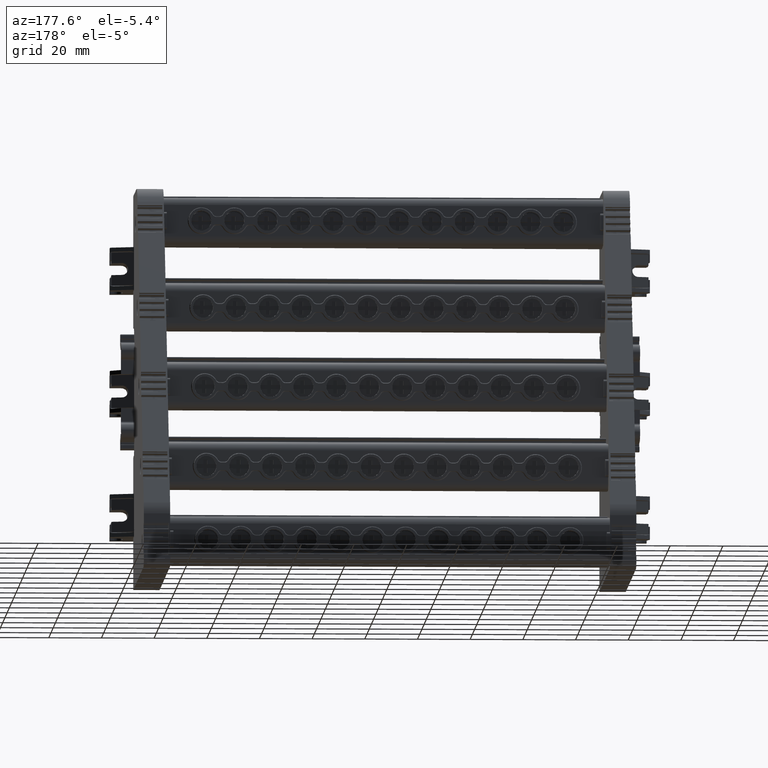
[diagram: clean part render]
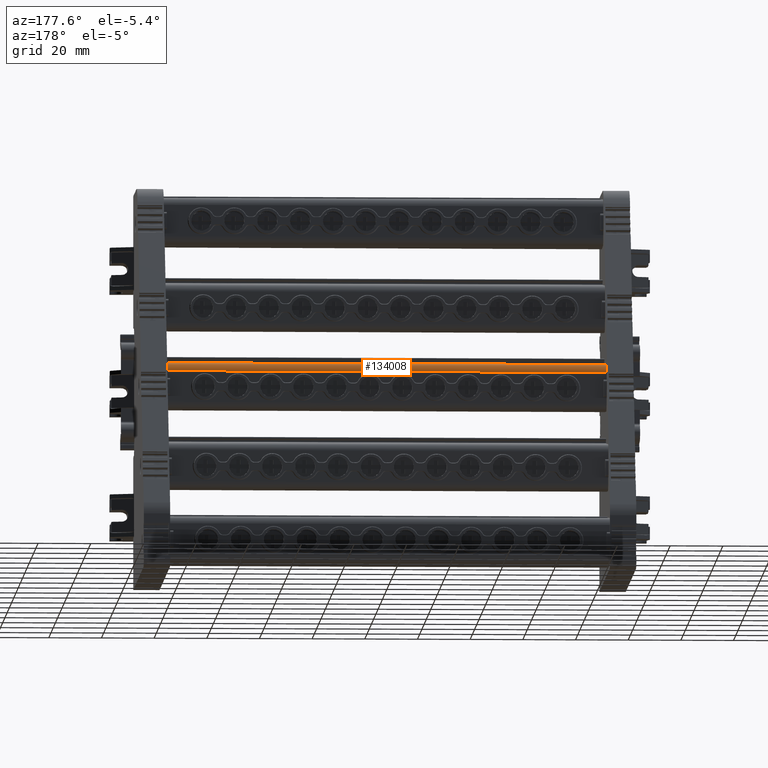
[diagram: same view with one face highlighted and labeled with its STEP entity id]
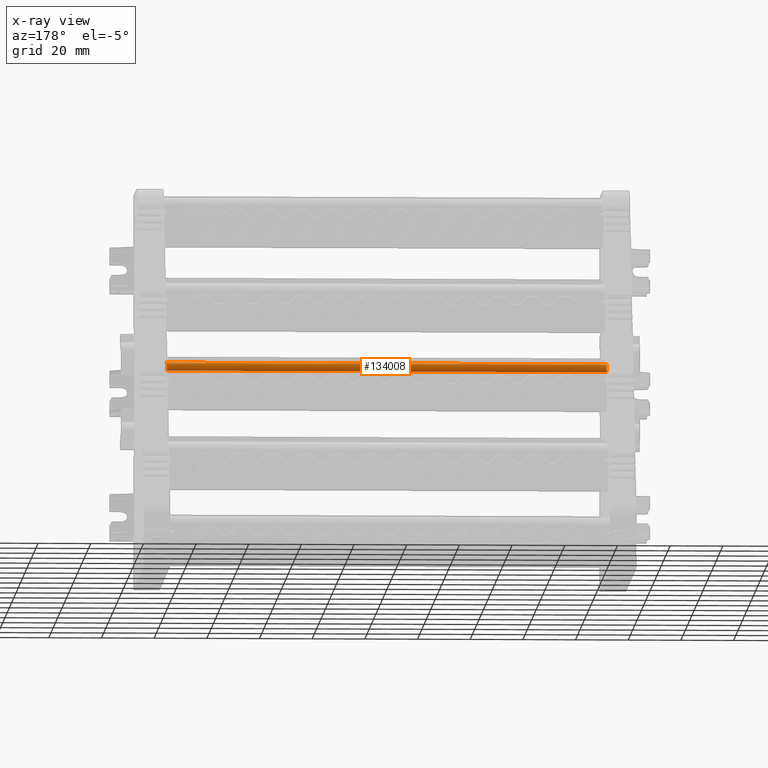
[diagram: x-ray of the same camera — body ghosted, the highlighted face saturated]
A machine part, auxiliary view. The second image highlights one B-rep face of the part: STEP entity #134008.
The next image is the same camera in x-ray: the body ghosted, the highlighted face saturated — about 0% of this face is hidden behind the body in this view.
In plain terms, the highlighted cylindrical surface (edge-blend (fillet) strip) has radius 3 mm, axis along (-1, 0, 0).
Its self-contained STEP definition (entity closure, byte-faithful):
#8115 = B_SPLINE_CURVE_WITH_KNOTS ( 'NONE', 3,
 ( #88661, #88673, #88676, #88685 ),
 .UNSPECIFIED., .F., .F.,
 ( 4, 4 ),
 ( 0.0000000000000000000, 1.000000000000000000 ),
 .UNSPECIFIED. ) ;
#8233 = B_SPLINE_CURVE_WITH_KNOTS ( 'NONE', 3,
 ( #106779, #106776, #106793, #106795, #106822, #106826, #106796, #106797, #106828, #106804 ),
 .UNSPECIFIED., .F., .F.,
 ( 4, 2, 2, 2, 4 ),
 ( 0.0000000000000000000, 0.2500000000000000000, 0.5000000000000000000, 0.7500000000000000000, 1.000000000000000000 ),
 .UNSPECIFIED. ) ;
#26209 = EDGE_CURVE ( 'NONE', #160243, #155518, #8115, .T. ) ;
#26307 = EDGE_CURVE ( 'NONE', #160142, #155612, #98813, .T. ) ;
#26438 = EDGE_CURVE ( 'NONE', #155518, #155612, #8233, .T. ) ;
#57641 = B_SPLINE_CURVE_WITH_KNOTS ( 'NONE', 3,
 ( #150737, #150773, #150693, #150645, #150770, #150749, #150762, #150601, #150776, #150696 ),
 .UNSPECIFIED., .F., .F.,
 ( 4, 2, 2, 2, 4 ),
 ( 0.0000000000000000000, 0.2500000000000000000, 0.5000000000000000000, 0.7500000000000000000, 1.000000000000000000 ),
 .UNSPECIFIED. ) ;
#84550 = FACE_OUTER_BOUND ( 'NONE', #212178, .T. ) ;
#84552 = CYLINDRICAL_SURFACE ( 'NONE', #111547, 2.999999999999975100 ) ;
#84557 = DIRECTION ( 'NONE',  ( -1.040834085586092900E-014, -1.000000000000000000, 0.0000000000000000000 ) ) ;
#84584 = CARTESIAN_POINT ( 'NONE',  ( -12.17442802713044100, 152.8607743740060100, -344.2644035297629400 ) ) ;
#84597 = DIRECTION ( 'NONE',  ( -1.000000000000000000, 1.014411379984426500E-014, 3.372056924162001300E-015 ) ) ;
#88661 = CARTESIAN_POINT ( 'NONE',  ( 44.19725230226248400, 155.8493584682806800, -344.5258707580061900 ) ) ;
#88673 = CARTESIAN_POINT ( 'NONE',  ( -11.46830780753505000, 155.8493584682812200, -344.5258707580060200 ) ) ;
#88676 = CARTESIAN_POINT ( 'NONE',  ( -67.13386791733276500, 155.8493584682817900, -344.5258707580057900 ) ) ;
#88685 = CARTESIAN_POINT ( 'NONE',  ( -122.7994280271304300, 155.8493584682824200, -344.5258707580056200 ) ) ;
#98713 = DIRECTION ( 'NONE',  ( -1.000000000000000000, 4.613783381125864000E-016, 4.389747448281639700E-015 ) ) ;
#98743 = CARTESIAN_POINT ( 'NONE',  ( -12.17442802713049800, 153.1743579417347100, -341.2808376521509800 ) ) ;
#98813 = LINE ( 'NONE', #98743, #185243 ) ;
#106776 = CARTESIAN_POINT ( 'NONE',  ( -122.7994280271304500, 155.8832041730624700, -344.1390125821451400 ) ) ;
#106779 = CARTESIAN_POINT ( 'NONE',  ( -122.7994280271304300, 155.8493584682824200, -344.5258707580056200 ) ) ;
#106793 = CARTESIAN_POINT ( 'NONE',  ( -122.7994280271304600, 155.8409918709171500, -343.7456468902159900 ) ) ;
#106795 = CARTESIAN_POINT ( 'NONE',  ( -122.7994280271304200, 155.6106762721916000, -343.0039098446044400 ) ) ;
#106796 = CARTESIAN_POINT ( 'NONE',  ( -122.7994280271304500, 154.6228137568609500, -341.8055375323494900 ) ) ;
#106797 = CARTESIAN_POINT ( 'NONE',  ( -122.7994280271304600, 153.9386505734277100, -341.4379237971827500 ) ) ;
#106804 = CARTESIAN_POINT ( 'NONE',  ( -122.7994280271304500, 153.1743579417353700, -341.2808376521506900 ) ) ;
#106822 = CARTESIAN_POINT ( 'NONE',  ( -122.7994280271304500, 155.4226596482802200, -342.6558176223815600 ) ) ;
#106826 = CARTESIAN_POINT ( 'NONE',  ( -122.7994280271304500, 154.9286354346942600, -342.0565187017754200 ) ) ;
#106828 = CARTESIAN_POINT ( 'NONE',  ( -122.7994280271304600, 153.5605665330159000, -341.3214295723255400 ) ) ;
#111547 = AXIS2_PLACEMENT_3D ( 'NONE', #84584, #84597, #84557 ) ;
#113446 = ORIENTED_EDGE ( 'NONE', *, *, #26209, .T. ) ;
#113447 = ORIENTED_EDGE ( 'NONE', *, *, #184727, .T. ) ;
#113453 = ORIENTED_EDGE ( 'NONE', *, *, #26307, .F. ) ;
#113482 = ORIENTED_EDGE ( 'NONE', *, *, #26438, .T. ) ;
#134008 = ADVANCED_FACE ( 'NONE', ( #84550 ), #84552, .T. ) ;
#150601 = CARTESIAN_POINT ( 'NONE',  ( 44.19725230226264800, 155.8409918709155300, -343.7456468902168500 ) ) ;
#150645 = CARTESIAN_POINT ( 'NONE',  ( 44.19725230226262600, 154.6228137568596700, -341.8055375323503400 ) ) ;
#150693 = CARTESIAN_POINT ( 'NONE',  ( 44.19725230226263300, 153.9386505734266600, -341.4379237971835400 ) ) ;
#150696 = CARTESIAN_POINT ( 'NONE',  ( 44.19725230226248400, 155.8493584682806800, -344.5258707580061900 ) ) ;
#150737 = CARTESIAN_POINT ( 'NONE',  ( 44.19725230226247000, 153.1743579417346800, -341.2808376521512100 ) ) ;
#150749 = CARTESIAN_POINT ( 'NONE',  ( 44.19725230226263300, 155.4226596482786500, -342.6558176223824100 ) ) ;
#150762 = CARTESIAN_POINT ( 'NONE',  ( 44.19725230226264800, 155.6106762721900300, -343.0039098446053500 ) ) ;
#150770 = CARTESIAN_POINT ( 'NONE',  ( 44.19725230226264000, 154.9286354346929500, -342.0565187017762100 ) ) ;
#150773 = CARTESIAN_POINT ( 'NONE',  ( 44.19725230226263300, 153.5605665330148800, -341.3214295723263400 ) ) ;
#150776 = CARTESIAN_POINT ( 'NONE',  ( 44.19725230226264000, 155.8832041730607900, -344.1390125821457100 ) ) ;
#155518 = VERTEX_POINT ( 'NONE', #215512 ) ;
#155612 = VERTEX_POINT ( 'NONE', #215864 ) ;
#160142 = VERTEX_POINT ( 'NONE', #221175 ) ;
#160243 = VERTEX_POINT ( 'NONE', #221151 ) ;
#184727 = EDGE_CURVE ( 'NONE', #160142, #160243, #57641, .T. ) ;
#185243 = VECTOR ( 'NONE', #98713, 1000.000000000000000 ) ;
#212178 = EDGE_LOOP ( 'NONE', ( #113446, #113482, #113453, #113447 ) ) ;
#215512 = CARTESIAN_POINT ( 'NONE',  ( -122.7994280271304300, 155.8493584682824200, -344.5258707580056200 ) ) ;
#215864 = CARTESIAN_POINT ( 'NONE',  ( -122.7994280271304500, 153.1743579417353700, -341.2808376521506900 ) ) ;
#221151 = CARTESIAN_POINT ( 'NONE',  ( 44.19725230226248400, 155.8493584682806800, -344.5258707580061900 ) ) ;
#221175 = CARTESIAN_POINT ( 'NONE',  ( 44.19725230226247000, 153.1743579417346800, -341.2808376521512100 ) ) ;